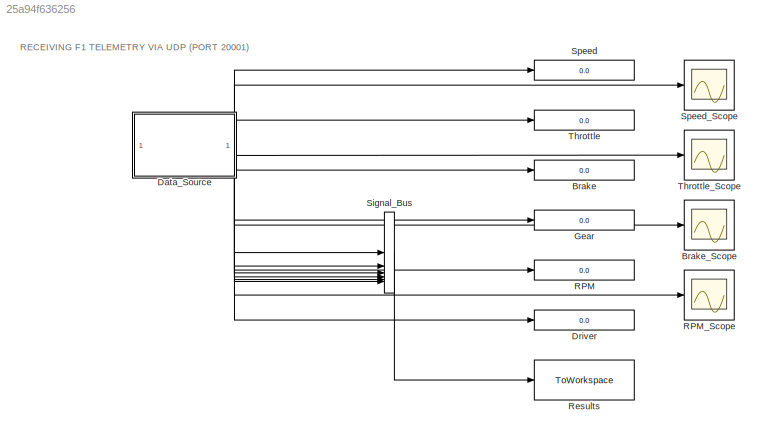
MODEL slx_25a94f636256
KIND model
CONFIG AbsTol = auto
CONFIG EnableMultiTasking = off
CONFIG FixedStep = 0.05
CONFIG MaxStep = auto
CONFIG MinStep = auto
CONFIG RelTol = 1e-3
CONFIG SampleTimeConstraint = Unconstrained
CONFIG SolverName = FixedStepAuto
CONFIG StartTime = 0.0
CONFIG StopTime = inf
BLOCK [Display] Brake
  Decimation = 1
BLOCK [Scope] Brake_Scope
  Floating = off
  GraphicalSettings = {"GraphicalSettings":{"LegacySettings":true,"Style":{"Style":{"PlotType":"Auto"}}}}
  NumInputPorts = 1
  WasSavedAsWebScope = on
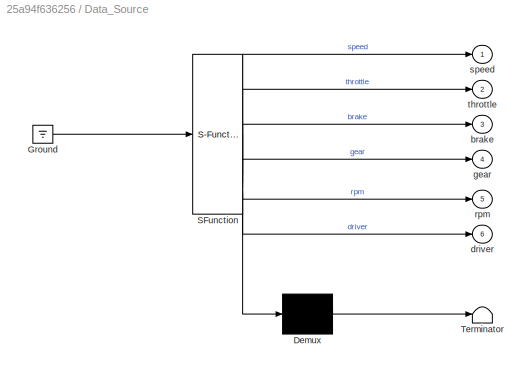
BLOCK [SubSystem] Data_Source
  ErrorFcn = Stateflow.Translate.translate
  PermitHierarchicalResolution = ExplicitOnly
  SFBlockType = MATLAB Function
  TreatAsAtomicUnit = on
BLOCK [Demux] Data_Source/ Demux 
  Outputs = 1
BLOCK [Ground] Data_Source/ Ground 
BLOCK [S-Function] Data_Source/ SFunction 
  EnableBusSupport = off
  FunctionName = sf_sfun
  PortCounts = [1 7]
  SFcnIsStateOwnerBlock = off
  SFunctionDeploymentMode = off
  Tag = Stateflow S-Function 2
BLOCK [Terminator] Data_Source/ Terminator 
BLOCK [Outport] Data_Source/brake
  Port = 3
BLOCK [Outport] Data_Source/driver
  Port = 6
BLOCK [Outport] Data_Source/gear
  Port = 4
BLOCK [Outport] Data_Source/rpm
  Port = 5
BLOCK [Outport] Data_Source/speed
BLOCK [Outport] Data_Source/throttle
  Port = 2
BLOCK [Display] Driver
  Decimation = 1
BLOCK [Display] Gear
  Decimation = 1
BLOCK [Display] RPM
  Decimation = 1
BLOCK [Scope] RPM_Scope
  Floating = off
  GraphicalSettings = {"GraphicalSettings":{"LegacySettings":true,"Style":{"Style":{"PlotType":"Auto"}}}}
  NumInputPorts = 1
  WasSavedAsWebScope = on
BLOCK [ToWorkspace] Results
  FixptAsFi = on
  MaxDataPoints = inf
  SampleTime = -1
  SaveFormat = Timeseries
  VariableName = telemetry_history
BLOCK [BusCreator] Signal_Bus
  DisplayOption = bar
  InheritFromInputs = on
  Inputs = 6
BLOCK [Display] Speed
  Decimation = 1
BLOCK [Scope] Speed_Scope
  Floating = off
  GraphicalSettings = {"GraphicalSettings":{"LegacySettings":true,"Style":{"Style":{"PlotType":"Auto"}}}}
  NumInputPorts = 1
  WasSavedAsWebScope = on
BLOCK [Display] Throttle
  Decimation = 1
BLOCK [Scope] Throttle_Scope
  Floating = off
  GraphicalSettings = {"GraphicalSettings":{"LegacySettings":true,"Style":{"Style":{"PlotType":"Auto"}}}}
  NumInputPorts = 1
  WasSavedAsWebScope = on
ANNOTATION (root): RECEIVING F1 TELEMETRY VIA UDP (PORT 20001)
NET Data_Source:1 -> Signal_Bus:1, Speed:1, Speed_Scope:1
NET Data_Source:2 -> Signal_Bus:2, Throttle:1, Throttle_Scope:1
NET Data_Source:3 -> Brake:1, Brake_Scope:1, Signal_Bus:3
NET Data_Source:4 -> Gear:1, Signal_Bus:4
NET Data_Source:5 -> RPM:1, RPM_Scope:1, Signal_Bus:5
NET Data_Source:6 -> Driver:1, Signal_Bus:6
LINE Signal_Bus:1 -> Results:1
note: NET lines group one-source signal fan-out (src -> all destinations, sorted); 1:1 wires keep LINE
CHART Data_Source states=1 transitions=1
  STATE_LABEL 'eML_blk_kernel()'
  STATE_LABEL 'SCRIPT:\nfunction [speed, throttle, brake, gear, rpm, driver] = Data_Source()\n    % Access global telemetry data that is updated by the UDP receiver\n    global telemetry_data;\n    \n    % Extract values from telemetry data struct\n    speed = double(telemetry_data.speed);\n    throttle = double(telemetry_data.throttle);\n    brake = double(telemetry_data.brake);\n    gear = double(telemetry_data.gear);\n...<+85ch>'
CHART  states=0 transitions=0
